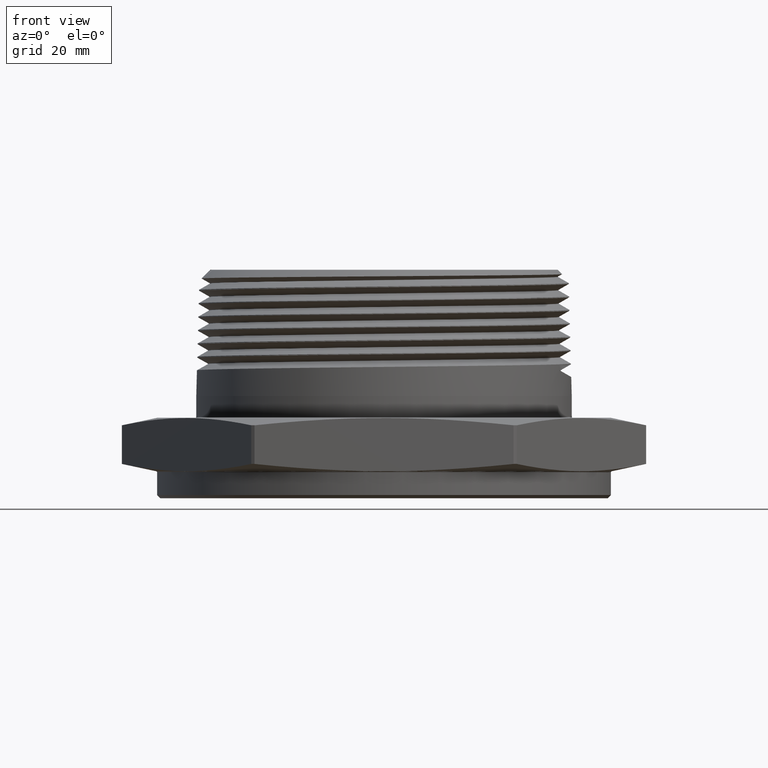
[diagram: clean part render]
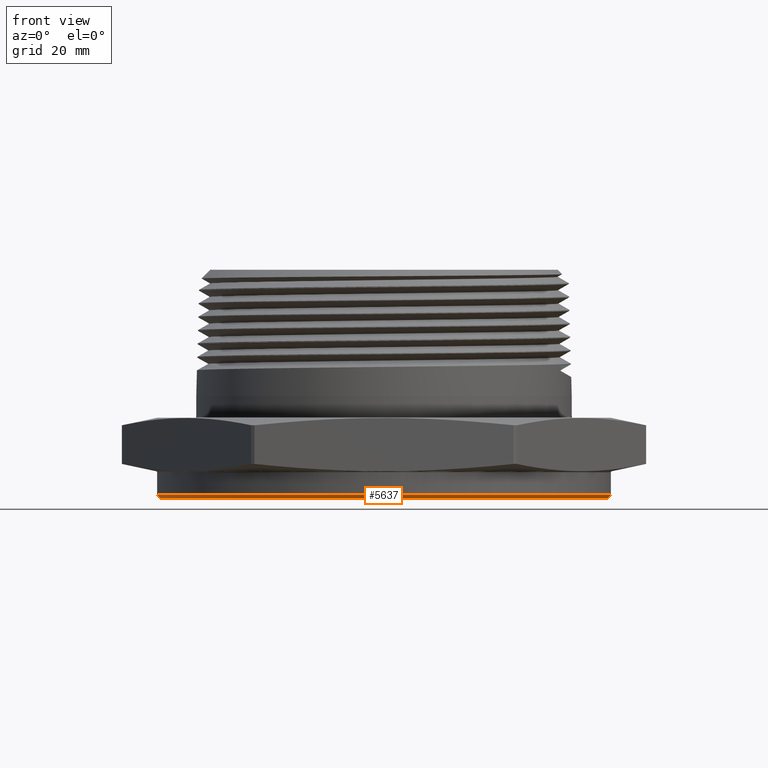
[diagram: same view with one face highlighted and labeled with its STEP entity id]
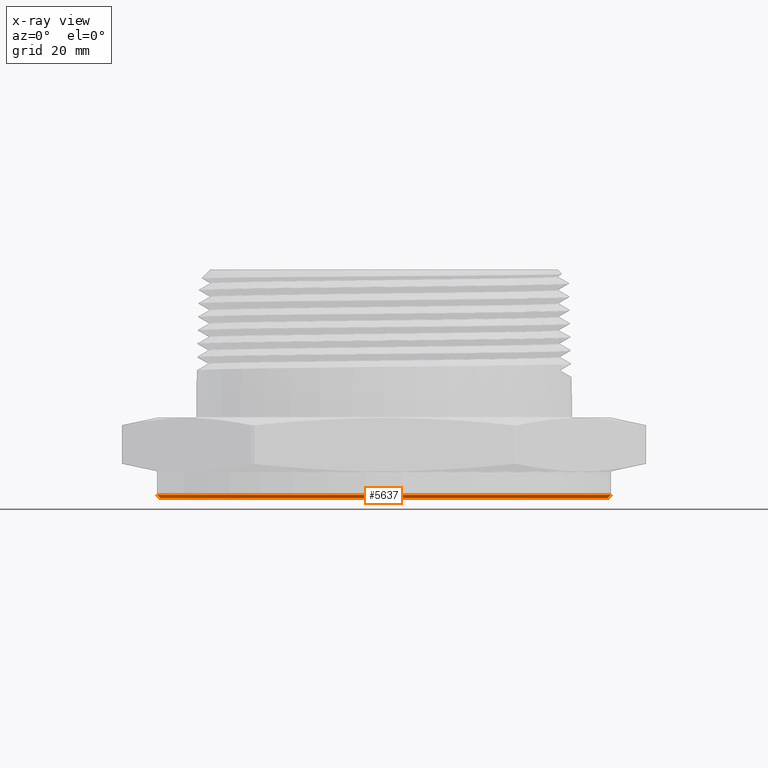
[diagram: x-ray of the same camera — body ghosted, the highlighted face saturated]
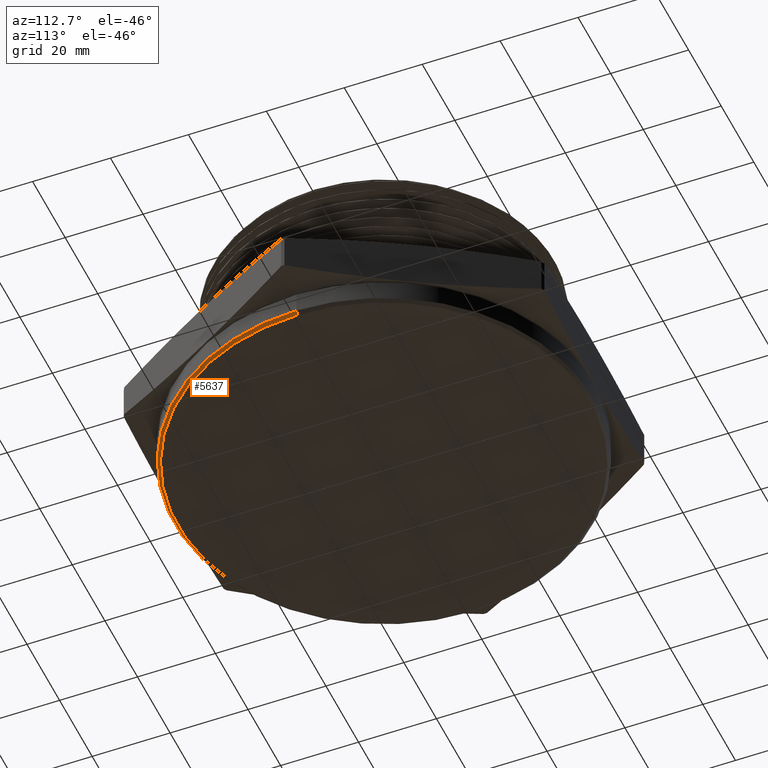
[diagram: same view with one face highlighted and labeled with its STEP entity id]
A machine part, front view. The second image highlights one B-rep face of the part: STEP entity #5637.
The next image is the same camera in x-ray: the body ghosted, the highlighted face saturated — about 0% of this face is hidden behind the body in this view.
A second angle (auxiliary view) of the same face is appended — the face is thin or edge-on in the first view.
In plain terms, the highlighted conical surface has half-angle 45 deg.
Its self-contained STEP definition (entity closure, byte-faithful):
#508 = CARTESIAN_POINT ( 'NONE',  ( 0.0000000000000000000, 0.0000000000000000000, -0.2200000000000003100 ) ) ;
#509 = DIRECTION ( 'NONE',  ( 0.0000000000000000000, 0.0000000000000000000, 1.000000000000000000 ) ) ;
#510 = DIRECTION ( 'NONE',  ( -1.000000000000000000, 0.0000000000000000000, 0.0000000000000000000 ) ) ;
#514 = CARTESIAN_POINT ( 'NONE',  ( 0.0000000000000000000, 0.0000000000000000000, -0.2500000000000000000 ) ) ;
#515 = DIRECTION ( 'NONE',  ( 0.0000000000000000000, 0.0000000000000000000, -1.000000000000000000 ) ) ;
#516 = DIRECTION ( 'NONE',  ( -1.000000000000000000, 0.0000000000000000000, 0.0000000000000000000 ) ) ;
#635 = ORIENTED_EDGE ( 'NONE', *, *, #1384, .F. ) ;
#639 = ORIENTED_EDGE ( 'NONE', *, *, #1341, .F. ) ;
#642 = ORIENTED_EDGE ( 'NONE', *, *, #1382, .T. ) ;
#650 = ORIENTED_EDGE ( 'NONE', *, *, #1339, .F. ) ;
#1217 = CARTESIAN_POINT ( 'NONE',  ( -2.115000000000000200, 2.590127980196652600E-016, -0.2200000000000003100 ) ) ;
#1222 = CARTESIAN_POINT ( 'NONE',  ( -2.085000000000000900, 2.571758278209442400E-016, -0.2500000000000000000 ) ) ;
#1230 = CARTESIAN_POINT ( 'NONE',  ( 2.085000000000000900, 0.0000000000000000000, -0.2500000000000000000 ) ) ;
#1233 = CARTESIAN_POINT ( 'NONE',  ( 2.115000000000000200, 0.0000000000000000000, -0.2200000000000003100 ) ) ;
#1339 = EDGE_CURVE ( 'NONE', #7781, #7797, #7376, .T. ) ;
#1341 = EDGE_CURVE ( 'NONE', #7794, #7786, #7374, .T. ) ;
#1382 = EDGE_CURVE ( 'NONE', #7794, #7797, #7427, .T. ) ;
#1384 = EDGE_CURVE ( 'NONE', #7786, #7781, #7430, .T. ) ;
#1493 = AXIS2_PLACEMENT_3D ( 'NONE', #508, #509, #510 ) ;
#1495 = AXIS2_PLACEMENT_3D ( 'NONE', #514, #515, #516 ) ;
#1547 = AXIS2_PLACEMENT_3D ( 'NONE', #4920, #4921, #4918 ) ;
#4720 = CARTESIAN_POINT ( 'NONE',  ( 2.085000000000000900, 0.0000000000000000000, -0.2500000000000000000 ) ) ;
#4727 = DIRECTION ( 'NONE',  ( 0.7071067811865443500, 0.0000000000000000000, 0.7071067811865507900 ) ) ;
#4731 = DIRECTION ( 'NONE',  ( -0.7071067811865443500, 8.659560562354894600E-017, 0.7071067811865507900 ) ) ;
#4735 = CARTESIAN_POINT ( 'NONE',  ( -2.085000000000000900, 2.553388576222232800E-016, -0.2500000000000000000 ) ) ;
#4918 = DIRECTION ( 'NONE',  ( 1.000000000000000000, 0.0000000000000000000, 0.0000000000000000000 ) ) ;
#4920 = CARTESIAN_POINT ( 'NONE',  ( 0.0000000000000000000, 0.0000000000000000000, -0.2500000000000000000 ) ) ;
#4921 = DIRECTION ( 'NONE',  ( 0.0000000000000000000, 0.0000000000000000000, 1.000000000000000000 ) ) ;
#5637 = ADVANCED_FACE ( 'NONE', ( #7499 ), #7503, .T. ) ;
#7374 = CIRCLE ( 'NONE', #1495, 2.085000000000000900 ) ;
#7376 = CIRCLE ( 'NONE', #1493, 2.115000000000000200 ) ;
#7427 = LINE ( 'NONE', #4720, #7429 ) ;
#7429 = VECTOR ( 'NONE', #4727, 39.37007874015748100 ) ;
#7430 = LINE ( 'NONE', #4735, #7432 ) ;
#7432 = VECTOR ( 'NONE', #4731, 39.37007874015748100 ) ;
#7499 = FACE_OUTER_BOUND ( 'NONE', #7863, .T. ) ;
#7503 = CONICAL_SURFACE ( 'NONE', #1547, 2.085000000000000900, 0.7853981633974437300 ) ;
#7781 = VERTEX_POINT ( 'NONE', #1217 ) ;
#7786 = VERTEX_POINT ( 'NONE', #1222 ) ;
#7794 = VERTEX_POINT ( 'NONE', #1230 ) ;
#7797 = VERTEX_POINT ( 'NONE', #1233 ) ;
#7863 = EDGE_LOOP ( 'NONE', ( #635, #639, #642, #650 ) ) ;